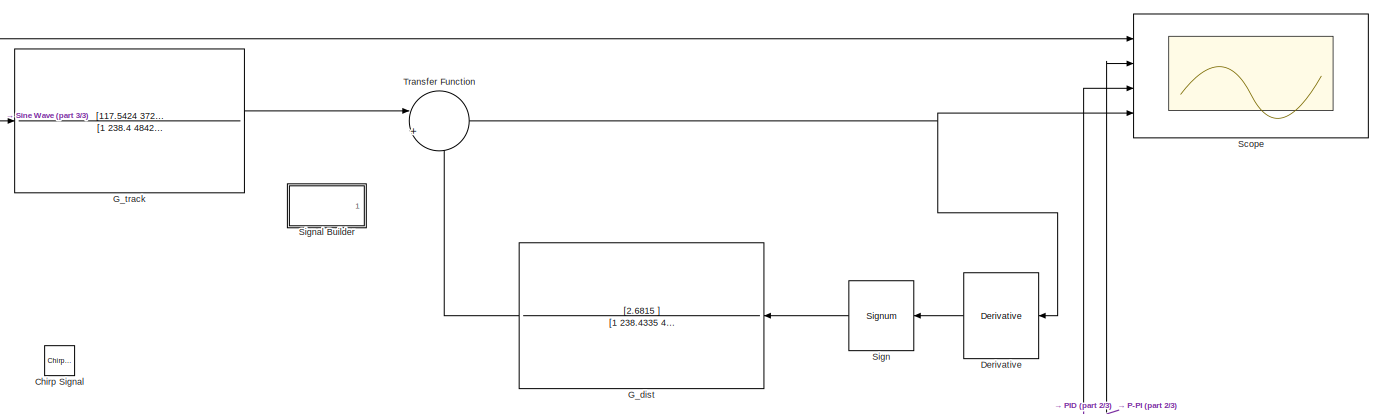
[diagram: root canvas - part 1/3, top right region]
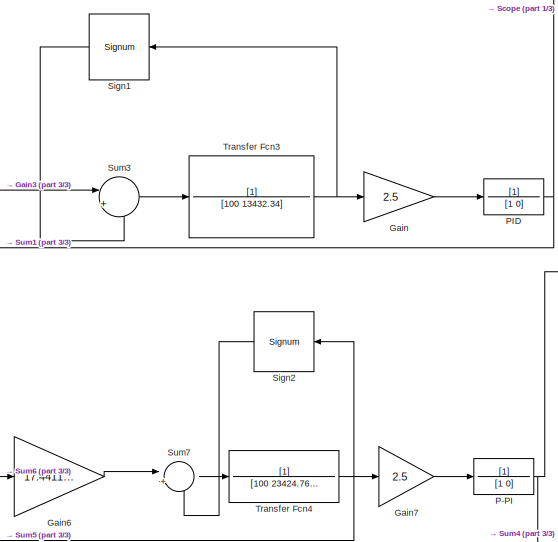
[diagram: root canvas - part 2/3, bottom right region]
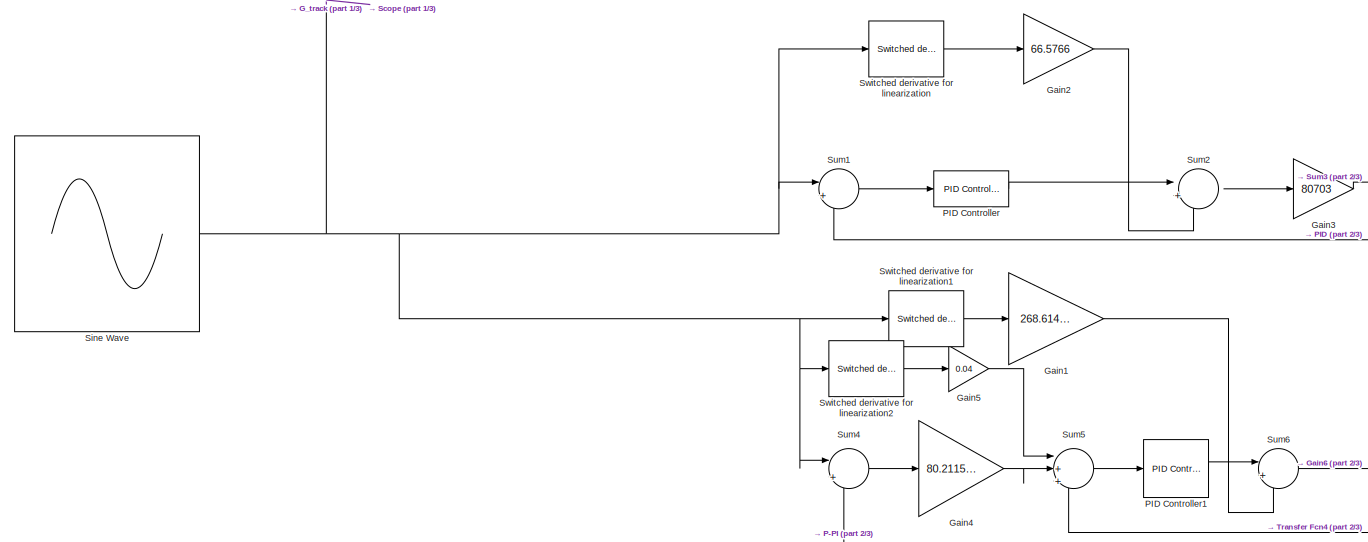
[diagram: root canvas - part 3/3, bottom left region]
MODEL slx_12844b530873
KIND model
CONFIG AbsTol = auto
CONFIG EnableMultiTasking = off
CONFIG FixedStep = auto
CONFIG MaxStep = auto
CONFIG MinStep = auto
CONFIG RelTol = 1e-3
CONFIG SampleTimeConstraint = Unconstrained
CONFIG SolverName = VariableStepAuto
CONFIG StartTime = 0.0
CONFIG StopTime = 10.0
BLOCK [Reference] Chirp Signal  REF=simulink/Sources/Chirp Signal
  IOType = siggen
  Ports = [0, 1]
  SourceBlock = simulink/Sources/Chirp Signal
  SourceProductBaseCode = SL
  SourceType = chirp
BLOCK [Derivative] Derivative
BLOCK [TransferFcn] G_dist
  Denominator = [1 238.4335 48421.5859 2487140.3]
  Numerator = [2.6815 ]
BLOCK [TransferFcn] G_track 
  Denominator = [1 238.4 48421.5859 2487140.3]
  Numerator = [117.5424 37258.97965 2487140.3]
BLOCK [Gain] Gain
  Gain = 2.5
BLOCK [Gain] Gain1
  Gain = 268.6149491
BLOCK [Gain] Gain2
  Gain = 66.5766
BLOCK [Gain] Gain3
  Gain = 80703
BLOCK [Gain] Gain4
  Gain = 80.21159963
BLOCK [Gain] Gain5
  Gain = 0.04
BLOCK [Gain] Gain6
  Gain = 17.44114583
BLOCK [Gain] Gain7
  Gain = 2.5
BLOCK [TransferFcn] P-PI
  Denominator = [1 0]
BLOCK [TransferFcn] PID
  Denominator = [1 0]
BLOCK [Reference] PID Controller  REF=pid_lib/PID Controller
  Ports = [1, 1]
  SourceBlock = pid_lib/PID Controller
  SourceProductBaseCode = SL
  SourceType = PID 1dof
BLOCK [Reference] PID Controller1  REF=pid_lib/PID Controller
  Ports = [1, 1]
  SourceBlock = pid_lib/PID Controller
  SourceProductBaseCode = SL
  SourceType = PID 1dof
BLOCK [Scope] Scope
  Floating = off
  NumInputPorts = 4
  Ports = [4]
  ScopeSpecificationString = Simulink.scopes.TimeScopeBlockCfg('CurrentConfiguration', extmgr.ConfigurationSet(extmgr.Configuration('Core','General UI',true),extmgr.Configuration('Core','Source UI',true),extmgr.Configuration('Sources','WiredSimulink',true),extmgr.Configuration('Visuals','Time Domain',true,'SerializedDisplays',{struct('MinYLimReal','-1.4408','MaxYLimReal','2.9499','YLabelReal','','MinYLimMag','0.00000','MaxYLi...<+1383ch>
BLOCK [Signum] Sign
  ZeroCross = off
BLOCK [Signum] Sign1
  ZeroCross = off
BLOCK [Signum] Sign2
  ZeroCross = off
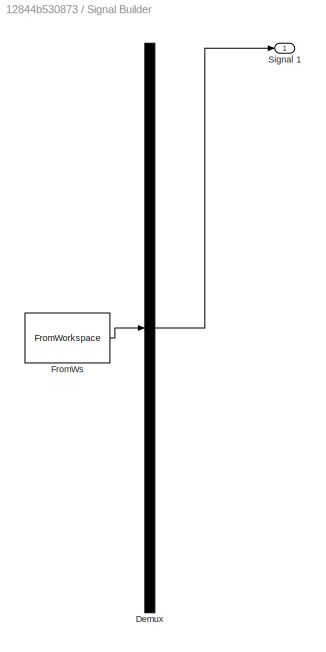
BLOCK [SubSystem] Signal Builder
  ClipboardFcn = sigbuilder_block('clipboard');
  CloseFcn = sigbuilder_block('close');
  ContinueFcn = sigbuilder_block('continue');
  CopyFcn = sigbuilder_block('copy');
  DeleteFcn = sigbuilder_block('delete');
  IOType = siggen
  LoadFcn = sigbuilder_block('load');
  MaskHideContents = on
  ModelCloseFcn = sigbuilder_block('modelClose');
  NameChangeFcn = sigbuilder_block('namechange');
  OpenFcn = sigbuilder_block('open',[437.6 199.2 550.4 400 ]);
  PauseFcn = sigbuilder_block('pause');
  Ports = [0, 1]
  PreSaveFcn = sigbuilder_block('preSave');
  RequestExecContextInheritance = off
  StartFcn = sigbuilder_block('start');
  StopFcn = sigbuilder_block('stop');
  Tag = STV Subsys
BLOCK [Demux] Signal Builder/Demux
  DisplayOption = none
  Outputs = 1
  Ports = [1, 1]
  Tag = STV Demux
BLOCK [FromWorkspace] Signal Builder/FromWs
  Tag = STV FromWs
  VariableName = tuvar
BLOCK [Outport] Signal Builder/Signal 1
  Tag = STV Outport
BLOCK [Sin] Sine Wave
  Ports = [0, 1]
  SampleTime = 0
BLOCK [Sum] Sum1
  Inputs = |+-
  Ports = [2, 1]
BLOCK [Sum] Sum2
  Inputs = |++
  Ports = [2, 1]
BLOCK [Sum] Sum3
  Inputs = |++
  Ports = [2, 1]
BLOCK [Sum] Sum4
  Inputs = |+-
  Ports = [2, 1]
BLOCK [Sum] Sum5
  Inputs = |++-
  Ports = [3, 1]
BLOCK [Sum] Sum6
  Inputs = |++
  Ports = [2, 1]
BLOCK [Sum] Sum7
  Inputs = |+-
  Ports = [2, 1]
BLOCK [Reference] Switched derivative for linearization  REF=simulink_extras/Linearization/Switched
derivative for
linearization
  Ports = [1, 1]
  SourceBlock = simulink_extras/Linearization/Switched\nderivative for\nlinearization
  SourceProductBaseCode = SL
  SourceType = Derivative for linearization
BLOCK [Reference] Switched derivative for linearization1  REF=simulink_extras/Linearization/Switched
derivative for
linearization
  Ports = [1, 1]
  SourceBlock = simulink_extras/Linearization/Switched\nderivative for\nlinearization
  SourceProductBaseCode = SL
  SourceType = Derivative for linearization
BLOCK [Reference] Switched derivative for linearization2  REF=simulink_extras/Linearization/Switched
derivative for
linearization
  Ports = [1, 1]
  SourceBlock = simulink_extras/Linearization/Switched\nderivative for\nlinearization
  SourceProductBaseCode = SL
  SourceType = Derivative for linearization
BLOCK [TransferFcn] Transfer Fcn3
  Denominator = [100 13432.34]
BLOCK [TransferFcn] Transfer Fcn4
  Denominator = [100 23424.7625]
BLOCK [Sum] Transfer Function
  Inputs = |+-
  Ports = [2, 1]
LINE Derivative:1 -> Sign:1
LINE G_dist:1 -> Transfer Function:2
LINE G_track :1 -> Transfer Function:1
LINE Gain1:1 -> Sum6:2
LINE Gain2:1 -> Sum2:2
LINE Gain3:1 -> Sum3:1
LINE Gain4:1 -> Sum5:2
LINE Gain5:1 -> Sum5:1
LINE Gain6:1 -> Sum7:1
LINE Gain7:1 -> P-PI:1
LINE Gain:1 -> PID:1
NET P-PI:1 -> Scope:2, Sum4:2
LINE PID Controller1:1 -> Sum6:1
LINE PID Controller:1 -> Sum2:1
NET PID:1 -> Scope:3, Sum1:2
LINE Sign1:1 -> Sum3:2
LINE Sign2:1 -> Sum7:2
LINE Sign:1 -> G_dist:1
NET Sine Wave:1 -> G_track :1, Scope:1, Sum1:1, Sum4:1, Switched derivative for linearization1:1, Switched derivative for linearization2:1, Switched derivative for linearization:1
LINE Sum1:1 -> PID Controller:1
LINE Sum2:1 -> Gain3:1
LINE Sum3:1 -> Transfer Fcn3:1
LINE Sum4:1 -> Gain4:1
LINE Sum5:1 -> PID Controller1:1
LINE Sum6:1 -> Gain6:1
LINE Sum7:1 -> Transfer Fcn4:1
LINE Switched derivative for linearization1:1 -> Gain1:1
LINE Switched derivative for linearization2:1 -> Gain5:1
LINE Switched derivative for linearization:1 -> Gain2:1
NET Transfer Fcn3:1 -> Gain:1, Sign1:1
NET Transfer Fcn4:1 -> Gain7:1, Sign2:1, Sum5:3
NET Transfer Function:1 -> Derivative:1, Scope:4
note: NET lines group one-source signal fan-out (src -> all destinations, sorted); 1:1 wires keep LINE
